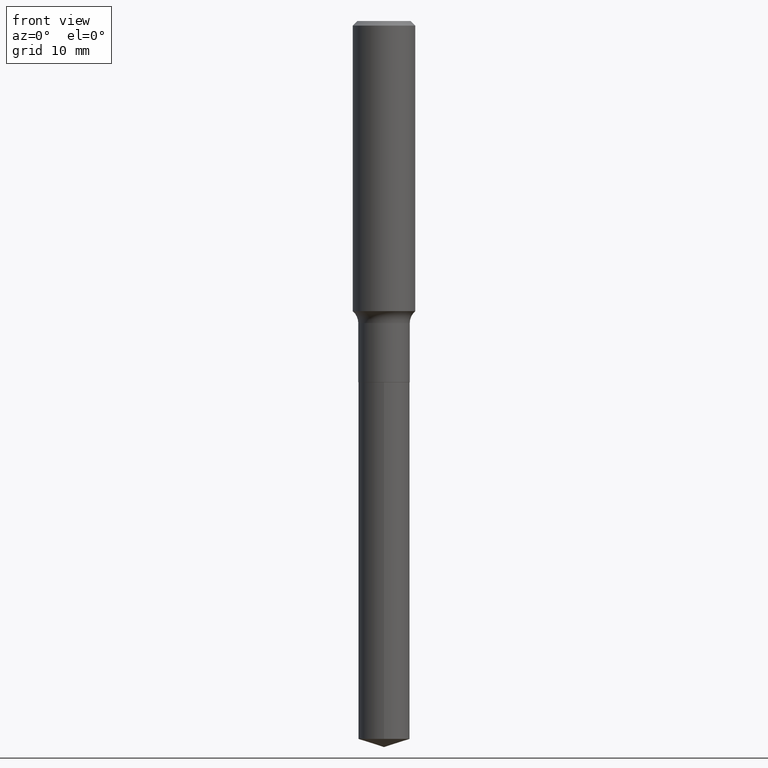
[diagram: clean part render]
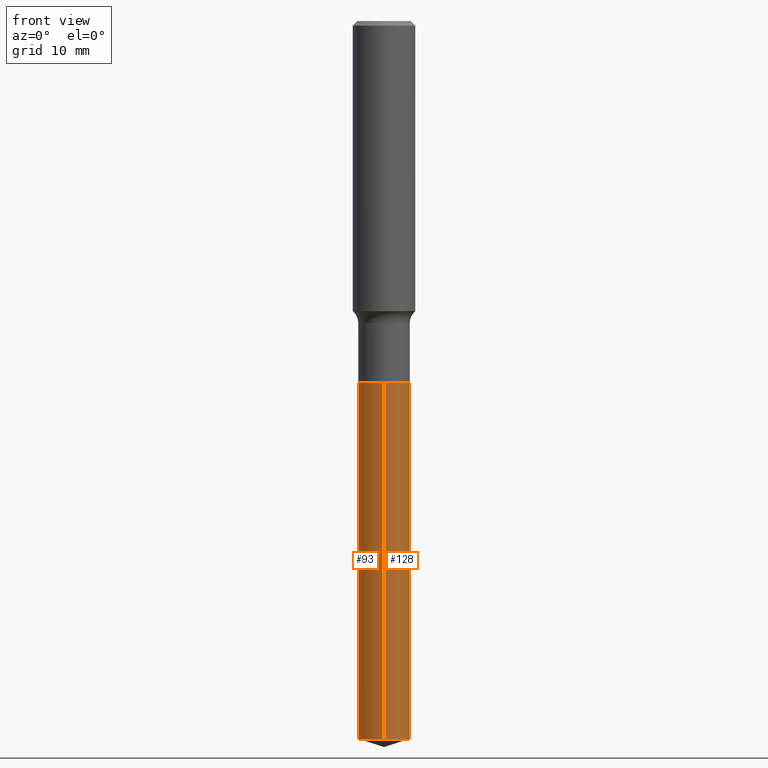
[diagram: same view with one multi-face feature highlighted, each face labeled with its STEP entity id]
A machine part, front view. The highlighted faces form ONE feature: a constant-radius fillet chain: 2 tangent blend faces with common blend radius 3.2639 mm. The faces share edges in the B-rep.
Their STEP definitions:
[1] entity #128 (Cylinder):
#31 = VECTOR ( 'NONE', #161, 39.37007874015748143 ) ;
#42 = ORIENTED_EDGE ( 'NONE', *, *, #373, .F. ) ;
#51 = CARTESIAN_POINT ( 'NONE',  ( 9.130474154518167189E-16, 0.1284999999999937026, -1.803900000000000947 ) ) ;
#53 = CARTESIAN_POINT ( 'NONE',  ( 8.766114575995814745E-29, -1.251462877361542034E-14, -3.584484105629051509 ) ) ;
#56 = VERTEX_POINT ( 'NONE', #409 ) ;
#67 = AXIS2_PLACEMENT_3D ( 'NONE', #479, #130, #284 ) ;
#70 = AXIS2_PLACEMENT_3D ( 'NONE', #182, #108, #455 ) ;
#86 = CARTESIAN_POINT ( 'NONE',  ( -8.973107040826411986E-16, -0.1285000000000063036, -1.803899999999999837 ) ) ;
#96 = CIRCLE ( 'NONE', #374, 0.1285000000000000031 ) ;
#108 = DIRECTION ( 'NONE',  ( -2.445676889258757921E-29, 3.491183352038366734E-15, 1.000000000000000000 ) ) ;
#113 = DIRECTION ( 'NONE',  ( -2.445676889258758202E-29, 3.491183352038367128E-15, 1.000000000000000000 ) ) ;
#121 = CARTESIAN_POINT ( 'NONE',  ( -8.973107040825974169E-16, -0.1285000000000125209, -3.584484105629051065 ) ) ;
#128 = ADVANCED_FACE ( 'NONE', ( #288 ), #322, .T. ) ;
#130 = DIRECTION ( 'NONE',  ( -2.445676889258757921E-29, 3.491183352038366734E-15, 1.000000000000000000 ) ) ;
#145 = ORIENTED_EDGE ( 'NONE', *, *, #258, .T. ) ;
#161 = DIRECTION ( 'NONE',  ( -2.445676889258758202E-29, 3.491183352038367128E-15, 1.000000000000000000 ) ) ;
#172 = EDGE_CURVE ( 'NONE', #56, #317, #290, .T. ) ;
#179 = CARTESIAN_POINT ( 'NONE',  ( 9.130474154518163245E-16, 0.1284999999999874853, -3.584484105629051953 ) ) ;
#182 = CARTESIAN_POINT ( 'NONE',  ( 4.411381179477369277E-29, -6.298283187139151433E-15, -1.803900000000000503 ) ) ;
#203 = DIRECTION ( 'NONE',  ( -2.445676889258757921E-29, 3.491183352038366734E-15, 1.000000000000000000 ) ) ;
#237 = VECTOR ( 'NONE', #113, 39.37007874015748143 ) ;
#243 = VERTEX_POINT ( 'NONE', #179 ) ;
#256 = LINE ( 'NONE', #489, #237 ) ;
#258 = EDGE_CURVE ( 'NONE', #243, #317, #256, .T. ) ;
#279 = EDGE_LOOP ( 'NONE', ( #307, #145, #321, #42 ) ) ;
#284 = DIRECTION ( 'NONE',  ( -6.982962677686265922E-15, -1.000000000000000000, 4.251903492084456561E-15 ) ) ;
#288 = FACE_OUTER_BOUND ( 'NONE', #279, .T. ) ;
#290 = CIRCLE ( 'NONE', #70, 0.1285000000000000031 ) ;
#307 = ORIENTED_EDGE ( 'NONE', *, *, #487, .T. ) ;
#313 = VERTEX_POINT ( 'NONE', #121 ) ;
#317 = VERTEX_POINT ( 'NONE', #51 ) ;
#321 = ORIENTED_EDGE ( 'NONE', *, *, #172, .F. ) ;
#322 = CYLINDRICAL_SURFACE ( 'NONE', #67, 0.1285000000000000031 ) ;
#373 = EDGE_CURVE ( 'NONE', #313, #56, #469, .T. ) ;
#374 = AXIS2_PLACEMENT_3D ( 'NONE', #53, #203, #396 ) ;
#396 = DIRECTION ( 'NONE',  ( -6.982962677686265922E-15, -1.000000000000000000, 4.251903492084456561E-15 ) ) ;
#409 = CARTESIAN_POINT ( 'NONE',  ( -8.973107040826411986E-16, -0.1285000000000063036, -1.803899999999999837 ) ) ;
#455 = DIRECTION ( 'NONE',  ( -6.982962677686265922E-15, -1.000000000000000000, 4.251903492084456561E-15 ) ) ;
#469 = LINE ( 'NONE', #86, #31 ) ;
#479 = CARTESIAN_POINT ( 'NONE',  ( 4.411381179477369277E-29, -6.298283187139151433E-15, -1.803900000000000503 ) ) ;
#487 = EDGE_CURVE ( 'NONE', #313, #243, #96, .T. ) ;
#489 = CARTESIAN_POINT ( 'NONE',  ( 9.130474154517729371E-16, 0.1284999999999937026, -1.803900000000000947 ) ) ;
[2] entity #93 (Cylinder):
#10 = ORIENTED_EDGE ( 'NONE', *, *, #258, .F. ) ;
#31 = VECTOR ( 'NONE', #161, 39.37007874015748143 ) ;
#46 = DIRECTION ( 'NONE',  ( -2.445676889258757921E-29, 3.491183352038366734E-15, 1.000000000000000000 ) ) ;
#51 = CARTESIAN_POINT ( 'NONE',  ( 9.130474154518167189E-16, 0.1284999999999937026, -1.803900000000000947 ) ) ;
#56 = VERTEX_POINT ( 'NONE', #409 ) ;
#61 = EDGE_CURVE ( 'NONE', #243, #313, #206, .T. ) ;
#86 = CARTESIAN_POINT ( 'NONE',  ( -8.973107040826411986E-16, -0.1285000000000063036, -1.803899999999999837 ) ) ;
#93 = ADVANCED_FACE ( 'NONE', ( #137 ), #480, .T. ) ;
#101 = DIRECTION ( 'NONE',  ( -6.982962677686265922E-15, -1.000000000000000000, 4.251903492084456561E-15 ) ) ;
#113 = DIRECTION ( 'NONE',  ( -2.445676889258758202E-29, 3.491183352038367128E-15, 1.000000000000000000 ) ) ;
#117 = DIRECTION ( 'NONE',  ( -6.982962677686265922E-15, -1.000000000000000000, 4.251903492084456561E-15 ) ) ;
#121 = CARTESIAN_POINT ( 'NONE',  ( -8.973107040825974169E-16, -0.1285000000000125209, -3.584484105629051065 ) ) ;
#137 = FACE_OUTER_BOUND ( 'NONE', #191, .T. ) ;
#161 = DIRECTION ( 'NONE',  ( -2.445676889258758202E-29, 3.491183352038367128E-15, 1.000000000000000000 ) ) ;
#173 = AXIS2_PLACEMENT_3D ( 'NONE', #190, #46, #117 ) ;
#174 = DIRECTION ( 'NONE',  ( -2.445676889258757921E-29, 3.491183352038366734E-15, 1.000000000000000000 ) ) ;
#179 = CARTESIAN_POINT ( 'NONE',  ( 9.130474154518163245E-16, 0.1284999999999874853, -3.584484105629051953 ) ) ;
#190 = CARTESIAN_POINT ( 'NONE',  ( 4.411381179477369277E-29, -6.298283187139151433E-15, -1.803900000000000503 ) ) ;
#191 = EDGE_LOOP ( 'NONE', ( #10, #386, #470, #359 ) ) ;
#206 = CIRCLE ( 'NONE', #294, 0.1285000000000000031 ) ;
#237 = VECTOR ( 'NONE', #113, 39.37007874015748143 ) ;
#243 = VERTEX_POINT ( 'NONE', #179 ) ;
#256 = LINE ( 'NONE', #489, #237 ) ;
#258 = EDGE_CURVE ( 'NONE', #243, #317, #256, .T. ) ;
#287 = CIRCLE ( 'NONE', #173, 0.1285000000000000031 ) ;
#294 = AXIS2_PLACEMENT_3D ( 'NONE', #448, #174, #400 ) ;
#313 = VERTEX_POINT ( 'NONE', #121 ) ;
#317 = VERTEX_POINT ( 'NONE', #51 ) ;
#359 = ORIENTED_EDGE ( 'NONE', *, *, #391, .F. ) ;
#367 = CARTESIAN_POINT ( 'NONE',  ( 4.411381179477369277E-29, -6.298283187139151433E-15, -1.803900000000000503 ) ) ;
#373 = EDGE_CURVE ( 'NONE', #313, #56, #469, .T. ) ;
#386 = ORIENTED_EDGE ( 'NONE', *, *, #61, .T. ) ;
#391 = EDGE_CURVE ( 'NONE', #317, #56, #287, .T. ) ;
#400 = DIRECTION ( 'NONE',  ( -6.982962677686265922E-15, -1.000000000000000000, 4.251903492084456561E-15 ) ) ;
#409 = CARTESIAN_POINT ( 'NONE',  ( -8.973107040826411986E-16, -0.1285000000000063036, -1.803899999999999837 ) ) ;
#444 = AXIS2_PLACEMENT_3D ( 'NONE', #367, #446, #101 ) ;
#446 = DIRECTION ( 'NONE',  ( -2.445676889258757921E-29, 3.491183352038366734E-15, 1.000000000000000000 ) ) ;
#448 = CARTESIAN_POINT ( 'NONE',  ( 8.766114575995814745E-29, -1.251462877361542034E-14, -3.584484105629051509 ) ) ;
#469 = LINE ( 'NONE', #86, #31 ) ;
#470 = ORIENTED_EDGE ( 'NONE', *, *, #373, .T. ) ;
#480 = CYLINDRICAL_SURFACE ( 'NONE', #444, 0.1285000000000000031 ) ;
#489 = CARTESIAN_POINT ( 'NONE',  ( 9.130474154517729371E-16, 0.1284999999999937026, -1.803900000000000947 ) ) ;